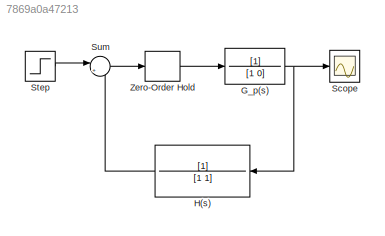
MODEL slx_7869a0a47213
KIND model
CONFIG AbsTol = auto
CONFIG EnableMultiTasking = off
CONFIG FixedStep = auto
CONFIG MaxStep = auto
CONFIG MinStep = auto
CONFIG RelTol = 1e-3
CONFIG SampleTimeConstraint = Unconstrained
CONFIG SolverName = VariableStepAuto
CONFIG StartTime = 0.0
CONFIG StopTime = 10.0
BLOCK [TransferFcn] G_p(s)
  Denominator = [1 0]
BLOCK [TransferFcn] H(s)
  Denominator = [1 1]
  NameLocation = top
BLOCK [Scope] Scope
  Floating = off
  NumInputPorts = 1
  ScopeSpecificationString = Simulink.scopes.TimeScopeBlockCfg('CurrentConfiguration', extmgr.ConfigurationSet(extmgr.Configuration('Core','General UI',true),extmgr.Configuration('Core','Source UI',true),extmgr.Configuration('Sources','WiredSimulink',true),extmgr.Configuration('Visuals','Time Domain',true,'SerializedDisplays',{struct('MinYLimReal','-0.17021','MaxYLimReal','1.53189','YLabelReal','','MinYLimMag','0.00000','MaxY...<+1443ch>
BLOCK [Step] Step
  SampleTime = 0
BLOCK [Sum] Sum
  Inputs = |+-
BLOCK [ZeroOrderHold] Zero-Order Hold
  SampleTime = 0.2
NET G_p(s):1 -> H(s):1, Scope:1
LINE H(s):1 -> Sum:2
LINE Step:1 -> Sum:1
LINE Sum:1 -> Zero-Order Hold:1
LINE Zero-Order Hold:1 -> G_p(s):1
note: NET lines group one-source signal fan-out (src -> all destinations, sorted); 1:1 wires keep LINE
